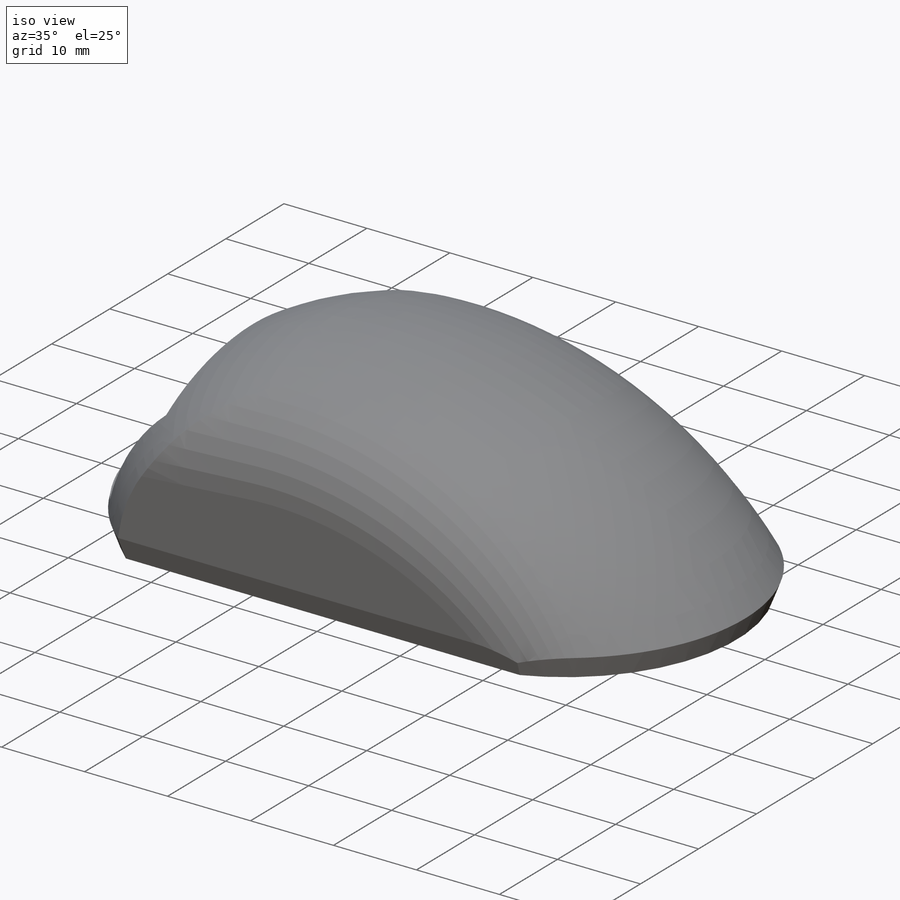
[diagram: iso view]
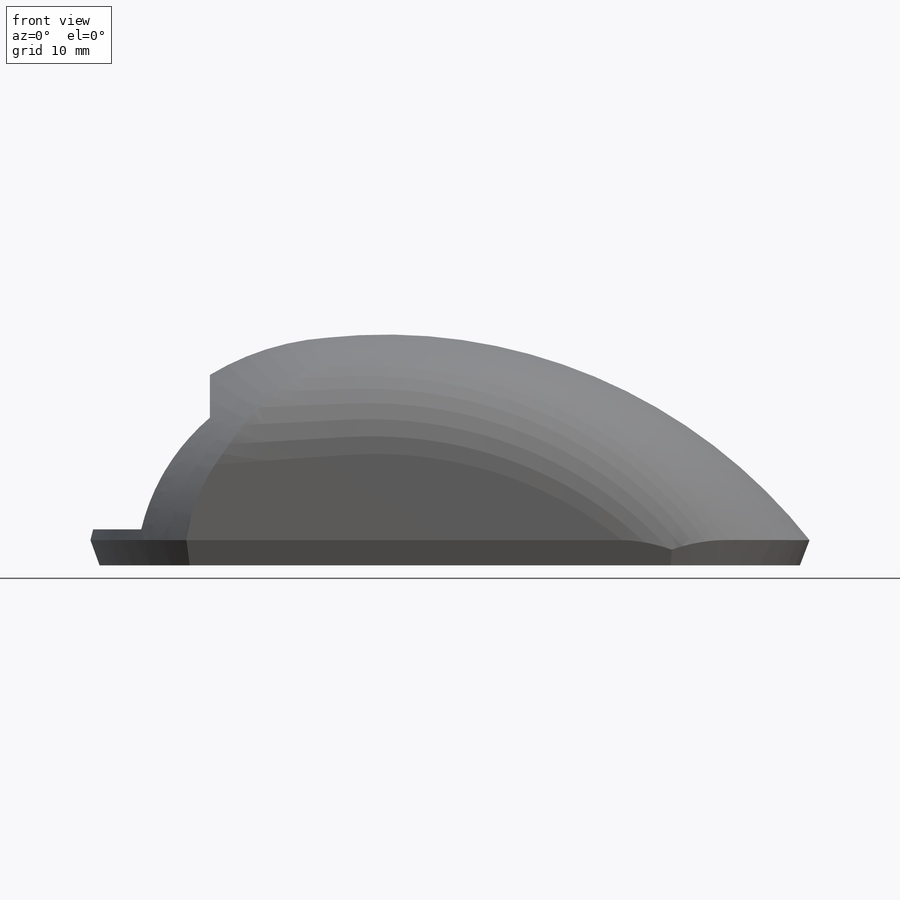
[diagram: front view]
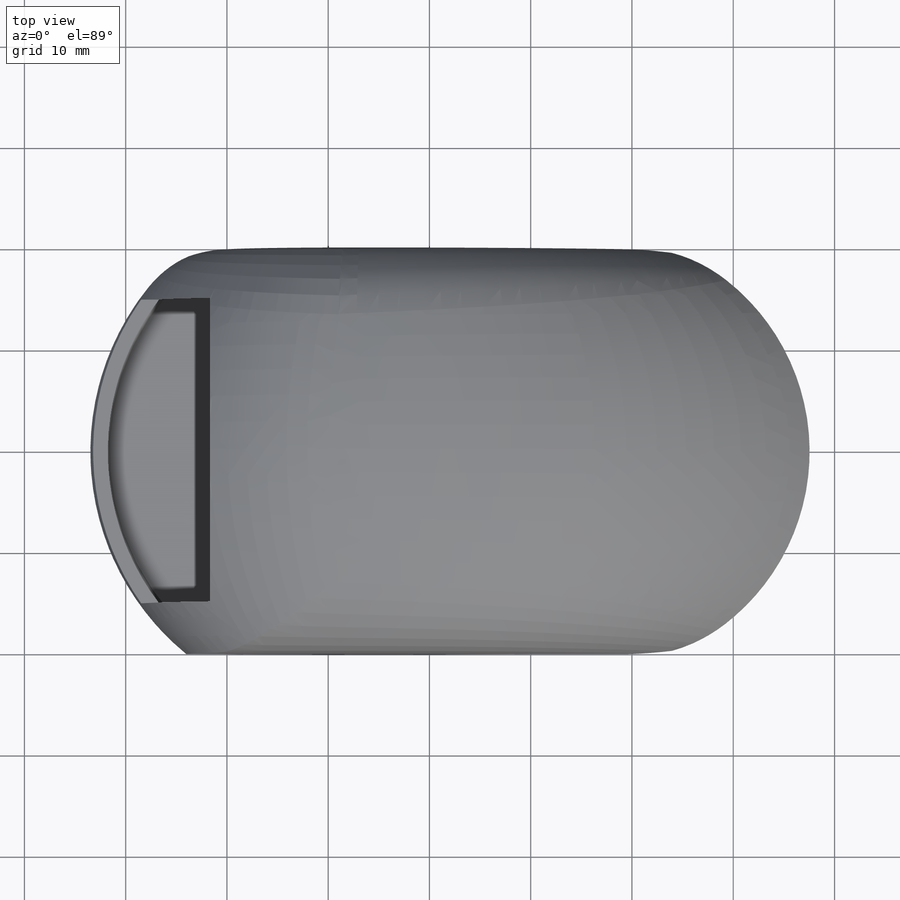
[diagram: top view]
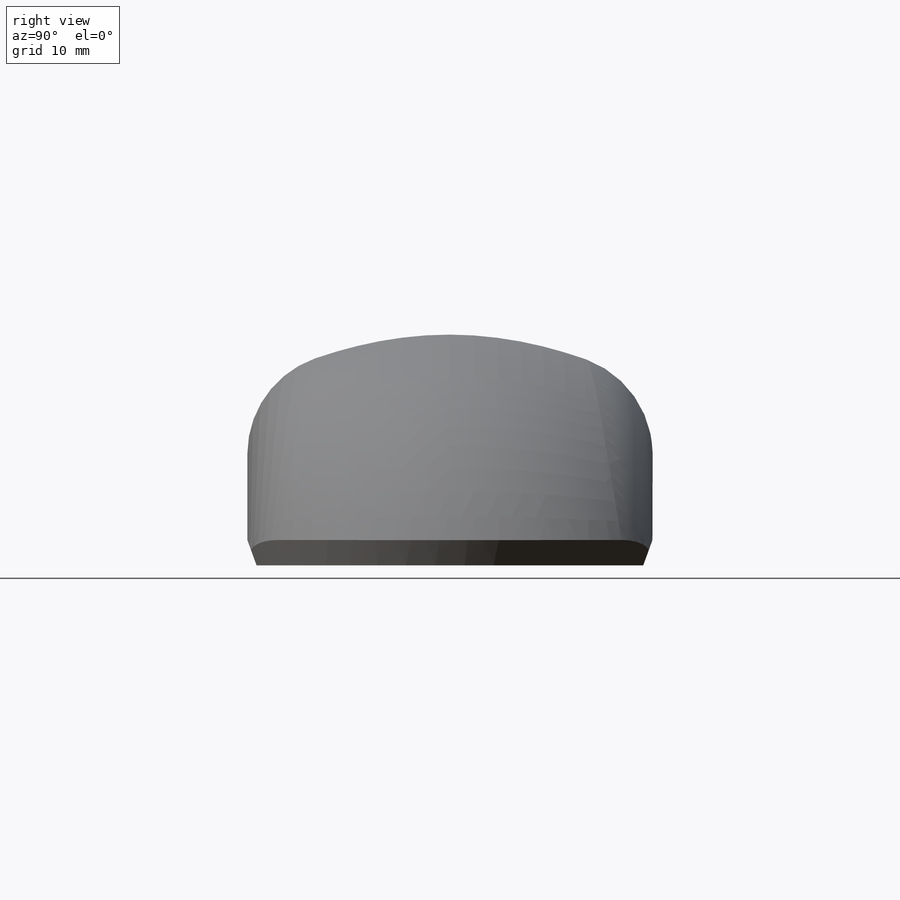
[diagram: right view]
SOLIDWORKS PART (.sldprt)
format: sldprt  version: not decoded by parser v0  size: 391,168 bytes
history: native  units: mm
features: sketch x5, plane x3, fillet x2, material x1, extrude x1, shell x1, cut_extrude x1 (+10 scaffold rows collapsed)
feature tree (24):
  scaffold x10  (default folders/planes/origin — collapsed)
  material  "Material <nicht angegeben>"
  plane  "Ebene vorne"
  plane  "Ebene oben"
  plane  "Ebene rechts"
  sketch  "Skizze1"  dims[D1=48.0mm]
  extrude  "Aufsatz-Linear austragen1"  Depth=2.5mm
  sketch  "Skizze2"  dims[D1=10.0mm]
  sketch  "3D-Skizze1"
  sketch  "3D-Skizze3"
  fillet  "Verrundung3"  Radius=10mm
  fillet  "Verrundung4"  Radius=10mm
  shell  "Wandung1"  Thickness=1.4mm
  sketch  "Skizze6"
  cut_extrude  "Schnitt-Linear austragen1"  Depth=15mm
decode coverage: 7 of 10 modeling features carry decoded parameters
note: suppression state not decoded; provenance and decode notes live in map.json
